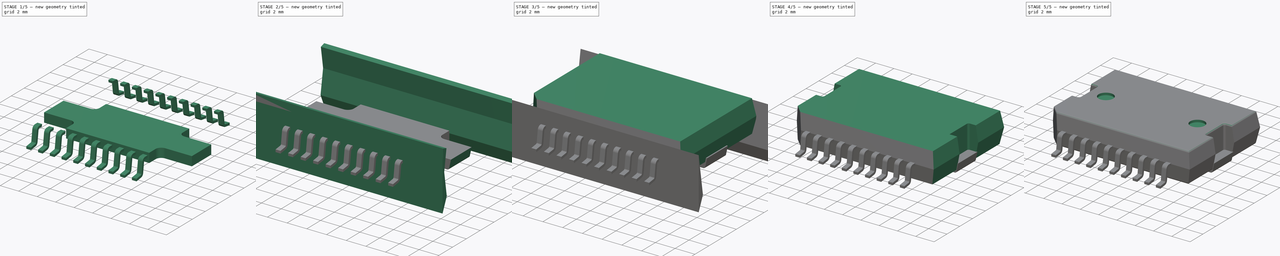
[diagram: build sequence overview — one tinted view per stage of 5, left to right]
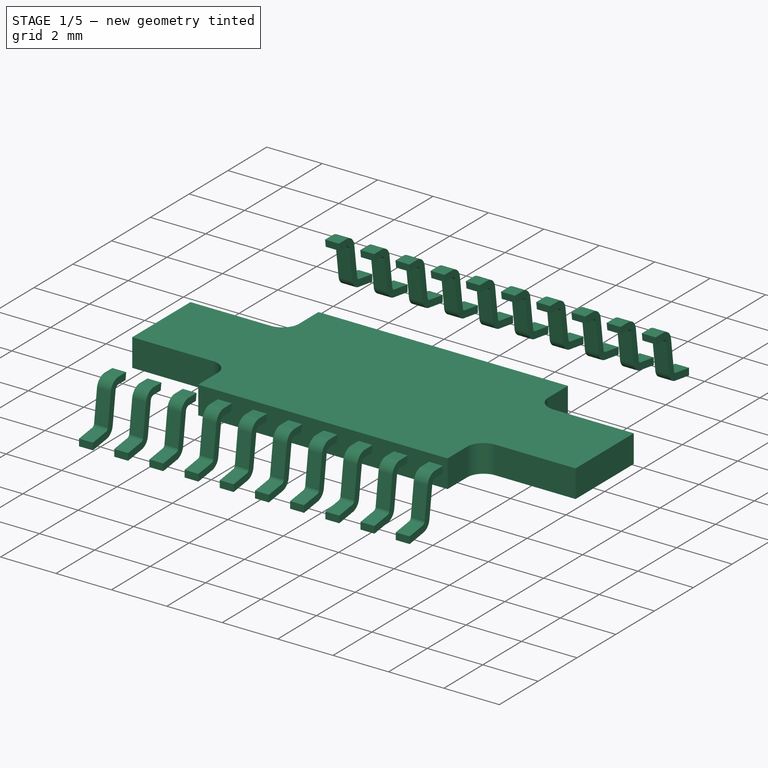
[diagram: stage 1 of 5 — iso view after this stage's code; geometry added in this stage tinted green]
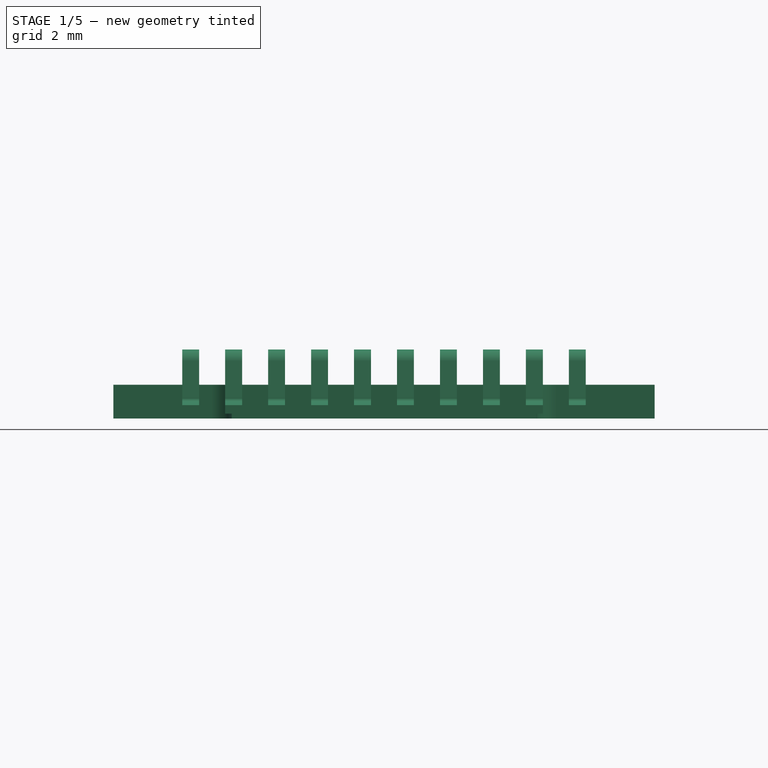
[diagram: stage 1 of 5 — front view after this stage's code; geometry added in this stage tinted green]
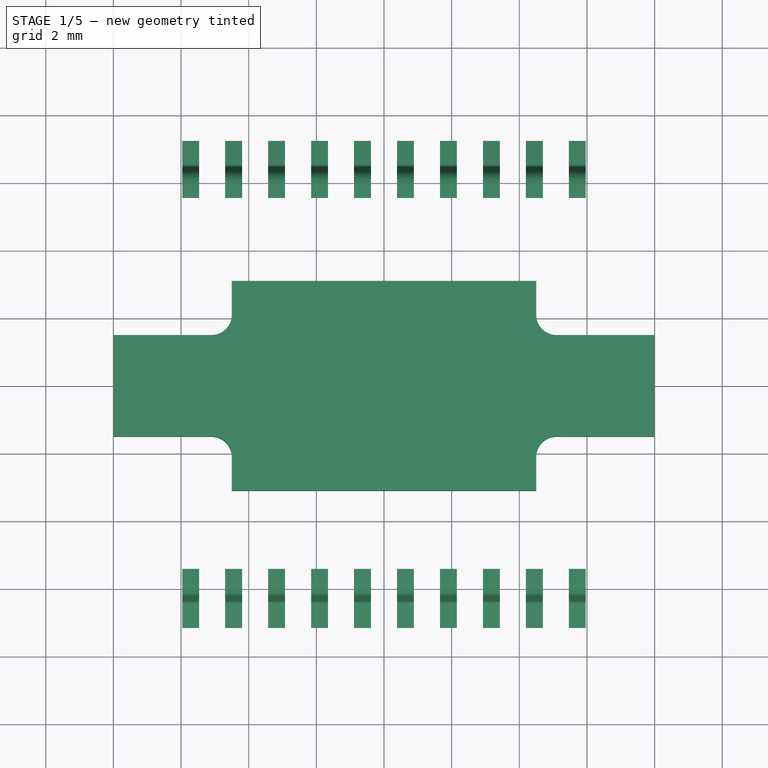
[diagram: stage 1 of 5 — top view after this stage's code; geometry added in this stage tinted green]
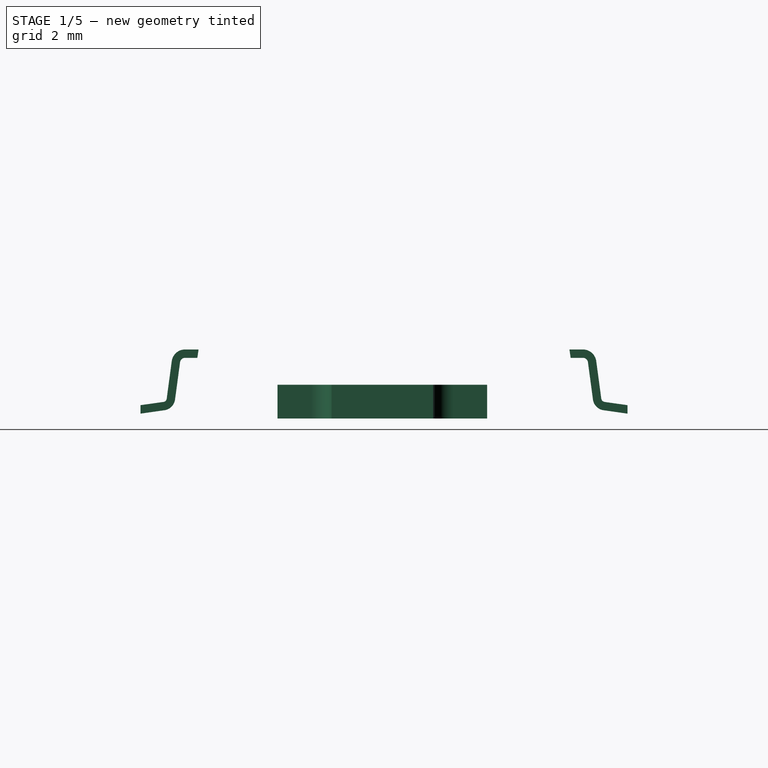
[diagram: stage 1 of 5 — right view after this stage's code; geometry added in this stage tinted green]
FCSTD DOCUMENT  (FreeCAD 0.16R6698 (Git))
Label: l298_Power_SO_20
License: All rights reserved
LicenseURL: http://en.wikipedia.org/wiki/All_rights_reserved
objects: Sketcher::SketchObject×13, PartDesign::Fillet×8, PartDesign::Pocket×5, PartDesign::Pad×4, Part::Cut×2, App::DocumentObjectGroup×2, Part::Sweep×2, Part::FeaturePython×2, PartDesign::Chamfer×1
note: 46 computed .brp shape members not serialized (recipe doc carries the construction recipe); baked Part::Feature solids carry a one-line shape summary decoded from their .brp

FEATURE [Sketcher::SketchObject] Sketch005
  ExternalGeometry = -> [Cut001]
  Placement = pos=(0,5.62034,0.890175) rot=(0,0.649448,0.760406;3.14159rad)
  Support = -> Cut001 [Face10]
  sketch-geometry (8):
    g0: LineSegment StartX=-10.103 StartY=1.45 StartZ=0 EndX=6.39552 EndY=1.45 EndZ=0
    g1: LineSegment StartX=6.39552 StartY=1.45 StartZ=0 EndX=6.39552 EndY=-1.45 EndZ=0
    g2: LineSegment StartX=6.39552 StartY=-1.45 StartZ=0 EndX=-10.103 EndY=-1.45 EndZ=0
    g3: LineSegment StartX=-10.103 StartY=-1.45 StartZ=0 EndX=-10.103 EndY=1.45 EndZ=0
    g4: LineSegment StartX=-6.39552 StartY=1.45 StartZ=0 EndX=10.103 EndY=1.45 EndZ=0
    g5: LineSegment StartX=10.103 StartY=1.45 StartZ=0 EndX=10.103 EndY=-1.45 EndZ=0
    g6: LineSegment StartX=10.103 StartY=-1.45 StartZ=0 EndX=-6.39552 EndY=-1.45 EndZ=0
    g7: LineSegment StartX=-6.39552 StartY=-1.45 StartZ=0 EndX=-6.39552 EndY=1.45 EndZ=0
  constraints (21):
    c: Coincident(g0,g1)
    c: Coincident(g1,g2)
    c: Coincident(g2,g3)
    c: Coincident(g3,g0)
    c: Horizontal(g0)
    c: Horizontal(g2)
    c: Vertical(g1)
    c: Vertical(g3)
    c: Symmetric(g0,g2,g-1)
    c: DistanceY(g3,g3) = 2.9
    c: Distance(g1,g-3) = 1.1
    c: Coincident(g4,g5)
    c: Coincident(g5,g6)
    c: Coincident(g6,g7)
    c: Coincident(g7,g4)
    c: Horizontal(g4)
    c: Horizontal(g6)
    c: Vertical(g5)
    c: Vertical(g7)
    c: Symmetric(g0,g4,g-2)
    c: Symmetric(g6,g1,g-2)
FEATURE [PartDesign::Pocket] Pocket002
  Length = 5
  Sketch = -> Sketch005
  Type = 0
FEATURE [Sketcher::SketchObject] Sketch006
  Placement = pos=(0,0,-0.3) rot=(0,0,1;0rad)
  sketch-geometry (16):
    g0: LineSegment StartX=-4.5 StartY=3.1 StartZ=0 EndX=4.5 EndY=3.1 EndZ=0
    g1: LineSegment StartX=-4.5 StartY=-3.1 StartZ=0 EndX=4.5 EndY=-3.1 EndZ=0
    g2: LineSegment StartX=-5.1 StartY=1.5 StartZ=0 EndX=-8 EndY=1.5 EndZ=0
    g3: LineSegment StartX=-5.1 StartY=-1.5 StartZ=0 EndX=-8 EndY=-1.5 EndZ=0
    g4: LineSegment StartX=8 StartY=1.5 StartZ=0 EndX=5.1 EndY=1.5 EndZ=0
    g5: LineSegment StartX=8 StartY=-1.5 StartZ=0 EndX=5.1 EndY=-1.5 EndZ=0
    g6: LineSegment StartX=-8 StartY=1.5 StartZ=0 EndX=-8 EndY=-1.5 EndZ=0
    g7: LineSegment StartX=8 StartY=1.5 StartZ=0 EndX=8 EndY=-1.5 EndZ=0
    g8: LineSegment StartX=-4.5 StartY=3.1 StartZ=0 EndX=-4.5 EndY=2.1 EndZ=0
    g9: LineSegment StartX=4.5 StartY=3.1 StartZ=0 EndX=4.5 EndY=2.1 EndZ=0
    g10: LineSegment StartX=-4.5 StartY=-3.1 StartZ=0 EndX=-4.5 EndY=-2.1 EndZ=0
    g11: LineSegment StartX=4.5 StartY=-3.1 StartZ=0 EndX=4.5 EndY=-2.1 EndZ=0
    g12: ArcOfCircle CenterX=-5.1 CenterY=2.1 CenterZ=0 NormalX=0 NormalY=0 NormalZ=1 Radius=0.6 StartAngle=4.71239 EndAngle=6.28319
    g13: ArcOfCircle CenterX=-5.1 CenterY=-2.1 CenterZ=0 NormalX=0 NormalY=0 NormalZ=1 Radius=0.6 StartAngle=0 EndAngle=1.5708
    g14: ArcOfCircle CenterX=5.1 CenterY=2.1 CenterZ=0 NormalX=0 NormalY=0 NormalZ=1 Radius=0.6 StartAngle=3.14159 EndAngle=4.71239
    g15: ArcOfCircle CenterX=5.1 CenterY=-2.1 CenterZ=0 NormalX=0 NormalY=0 NormalZ=1 Radius=0.6 StartAngle=1.5708 EndAngle=3.14159
  constraints (40):
    c: Symmetric(g2,g4,g-2)
    c: Equal(g2,g4)
    c: Symmetric(g0,g0,g-2)
    c: Horizontal(g2)
    c: Horizontal(g3)
    c: Horizontal(g4)
    c: Symmetric(g5,g3,g-2)
    c: Equal(g2,g3)
    c: Equal(g3,g5)
    c: Symmetric(g0,g1,g-1)
    c: Symmetric(g0,g1,g-1)
    c: DistanceX(g0,g0) = 9
    c: Horizontal(g5)
    c: DistanceY(g1,g0) = 6.2
    c: DistanceX(g2,g4) = 16
    c: Vertical(g8)
    c: Vertical(g9)
    c: Vertical(g11)
    c: Vertical(g10)
    c: Equal(g11,g10)
    c: Equal(g10,g8)
    c: Equal(g8,g9)
    c: Coincident(g0,g8)
    c: Coincident(g0,g9)
    c: Coincident(g1,g10)
    c: Coincident(g1,g11)
    c: Tangent(g8,g12) = 1.5708
    c: Tangent(g2,g12) = 1.5708
    c: Tangent(g3,g13) = -1.5708
    c: Tangent(g10,g13) = -1.5708
    c: Tangent(g9,g14) = -1.5708
    c: Tangent(g4,g14) = 1.5708
    c: Coincident(g2,g6)
    c: Coincident(g3,g6)
    c: Vertical(g6)
    c: Tangent(g5,g15) = -1.5708
    c: Tangent(g11,g15) = 1.5708
    c: Coincident(g4,g7)
    c: Coincident(g5,g7)
    c: DistanceY(g6,g6) = 3
FEATURE [PartDesign::Pad] Pad003
  Length = 1
  Length2 = 100
  Placement = pos=(0,0,-0.3) rot=(0,0,1;0rad)
  Sketch = -> Sketch006
  Type = 0
FEATURE [App::DocumentObjectGroup] Grupo001  label="disipador"
  Group = -> [Pad003,Pocket004,Fillet007]
FEATURE [Sketcher::SketchObject] Sketch009  label="seccion"
  Placement = pos=(0,0,0) rot=(-1,0,0;4.71239rad)
  sketch-geometry (4):
    g0: LineSegment StartX=0.25 StartY=-0.125 StartZ=0 EndX=-0.25 EndY=-0.125 EndZ=0
    g1: LineSegment StartX=-0.25 StartY=-0.125 StartZ=0 EndX=-0.25 EndY=0.125 EndZ=0
    g2: LineSegment StartX=-0.25 StartY=0.125 StartZ=0 EndX=0.25 EndY=0.125 EndZ=0
    g3: LineSegment StartX=0.25 StartY=0.125 StartZ=0 EndX=0.25 EndY=-0.125 EndZ=0
  constraints (11):
    c: Coincident(g0,g1)
    c: Coincident(g1,g2)
    c: Coincident(g2,g3)
    c: Coincident(g3,g0)
    c: Horizontal(g0)
    c: Horizontal(g2)
    c: Vertical(g1)
    c: Vertical(g3)
    c: Symmetric(g1,g0,g-1)
    c: DistanceX(g2,g2) = 0.5
    c: DistanceY(g1,g1) = 0.25
FEATURE [Sketcher::SketchObject] Sketch010
  Placement = pos=(0,0,0) rot=(0.57735,0.57735,0.57735;2.0944rad)
  sketch-geometry (5):
    g0: LineSegment StartX=0 StartY=0 StartZ=0 EndX=0.69099 EndY=0.0980878 EndZ=0
    g1: LineSegment StartX=0.9 StartY=0.308603 StartZ=0 EndX=1.04814 EndY=1.40893 EndZ=0
    g2: LineSegment StartX=1.32166 StartY=1.64809 StartZ=0 EndX=1.7 EndY=1.64809 EndZ=0
    g3: ArcOfCircle CenterX=0.656453 CenterY=0.341393 CenterZ=0 NormalX=0 NormalY=0 NormalZ=1 Radius=0.245745 StartAngle=4.8534 EndAngle=6.14935
    g4: ArcOfCircle CenterX=1.32166 CenterY=1.3721 CenterZ=0 NormalX=0 NormalY=0 NormalZ=1 Radius=0.275989 StartAngle=1.5708 EndAngle=3.00776
  constraints (9):
    c: Tangent(g0,g3) = -1.5708
    c: Tangent(g1,g3) = -1.5708
    c: Tangent(g1,g4) = 1.5708
    c: Tangent(g2,g4) = 1.5708
    c: Coincident(g0,g-1)
    c: Horizontal(g2)
    c: DistanceX(g2) = 1.7
    c: DistanceY(g0,g2) = 1.55
    c: DistanceX(g1) = 0.9
FEATURE [Part::Sweep] Sweep
  Frenet = false
  Sections = -> [Sketch009]
  Solid = true
  Spine = -> Sketch010 [Edge1,Edge2,Edge3,Edge4,Edge5]
  Transition = 1
FEATURE [Part::FeaturePython] Array  # Draft array (typed FeaturePython)
  Angle = 360
  ArrayType = 0
  Axis = (0,0,1)
  Base = -> Sweep
  Center = (0,0,0)
  Fuse = false
  IntervalAxis = (0,0,0)
  IntervalX = (1.27,0,0)
  IntervalY = (0,14.5,0)
  IntervalZ = (0,0,0)
  NumberPolar = 1
  NumberX = 10
  NumberY = 1
  NumberZ = 1
  Placement = pos=(-5.715,-7.15,-0.03) rot=(0,0,1;0rad)
FEATURE [Sketcher::SketchObject] Sketch011  label="seccion001"
  Placement = pos=(0,0,0) rot=(1,0,0;1.5708rad)
  sketch-geometry (4):
    g0: LineSegment StartX=0.25 StartY=-0.125 StartZ=0 EndX=-0.25 EndY=-0.125 EndZ=0
    g1: LineSegment StartX=-0.25 StartY=-0.125 StartZ=0 EndX=-0.25 EndY=0.125 EndZ=0
    g2: LineSegment StartX=-0.25 StartY=0.125 StartZ=0 EndX=0.25 EndY=0.125 EndZ=0
    g3: LineSegment StartX=0.25 StartY=0.125 StartZ=0 EndX=0.25 EndY=-0.125 EndZ=0
  constraints (11):
    c: Coincident(g0,g1)
    c: Coincident(g1,g2)
    c: Coincident(g2,g3)
    c: Coincident(g3,g0)
    c: Horizontal(g0)
    c: Horizontal(g2)
    c: Vertical(g1)
    c: Vertical(g3)
    c: Symmetric(g1,g0,g-1)
    c: DistanceX(g2,g2) = 0.5
    c: DistanceY(g1,g1) = 0.25
FEATURE [Sketcher::SketchObject] Sketch012
  Placement = pos=(0,0,0) rot=(0.57735,0.57735,0.57735;2.0944rad)
  sketch-geometry (5):
    g0: LineSegment StartX=0 StartY=0 StartZ=0 EndX=0.69099 EndY=0.0980878 EndZ=0
    g1: LineSegment StartX=0.9 StartY=0.308603 StartZ=0 EndX=1.04814 EndY=1.40893 EndZ=0
    g2: LineSegment StartX=1.32166 StartY=1.64809 StartZ=0 EndX=1.7 EndY=1.64809 EndZ=0
    g3: ArcOfCircle CenterX=0.656453 CenterY=0.341393 CenterZ=0 NormalX=0 NormalY=0 NormalZ=1 Radius=0.245745 StartAngle=4.8534 EndAngle=6.14935
    g4: ArcOfCircle CenterX=1.32166 CenterY=1.3721 CenterZ=0 NormalX=0 NormalY=0 NormalZ=1 Radius=0.275989 StartAngle=1.5708 EndAngle=3.00776
  constraints (9):
    c: Tangent(g0,g3) = -1.5708
    c: Tangent(g1,g3) = -1.5708
    c: Tangent(g1,g4) = 1.5708
    c: Tangent(g2,g4) = 1.5708
    c: Coincident(g0,g-1)
    c: Horizontal(g2)
    c: DistanceX(g2) = 1.7
    c: DistanceY(g0,g2) = 1.55
    c: DistanceX(g1) = 0.9
FEATURE [Part::Sweep] Sweep001
  Frenet = false
  Placement = pos=(0,0,0) rot=(0,0,1;3.14159rad)
  Sections = -> [Sketch011]
  Solid = true
  Spine = -> Sketch012 [Edge1,Edge2,Edge3,Edge4,Edge5]
  Transition = 1
FEATURE [Part::FeaturePython] Array001  # Draft array (typed FeaturePython)
  Angle = 360
  ArrayType = 0
  Axis = (0,0,1)
  Base = -> Sweep001
  Center = (0,0,0)
  Fuse = false
  IntervalAxis = (0,0,0)
  IntervalX = (1.27,0,0)
  IntervalY = (0,1,0)
  IntervalZ = (0,0,0)
  NumberPolar = 1
  NumberX = 10
  NumberY = 1
  NumberZ = 1
  Placement = pos=(-5.715,7.25,-0.03) rot=(0,0,1;0rad)
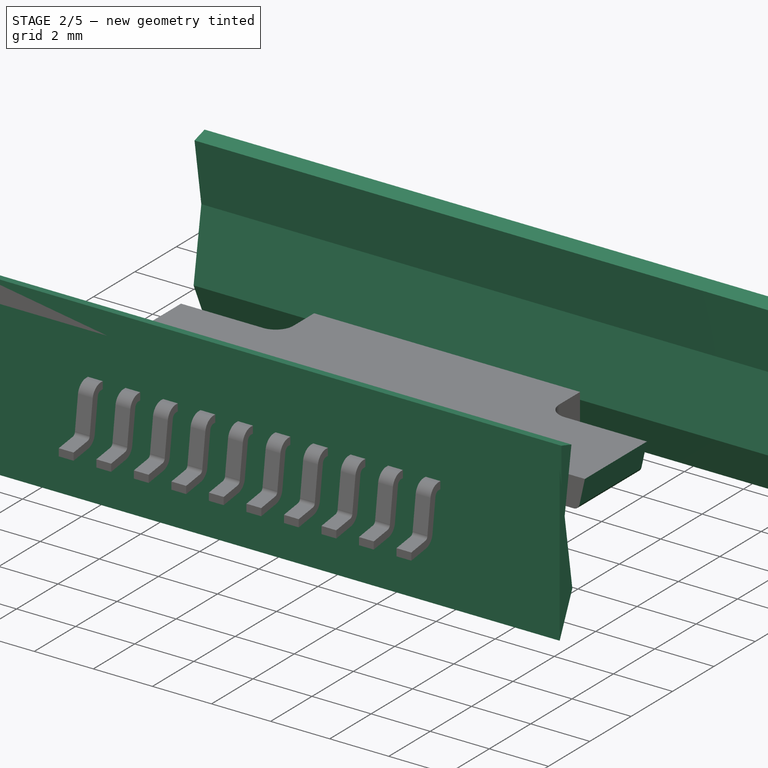
[diagram: stage 2 of 5 — iso view after this stage's code; geometry added in this stage tinted green]
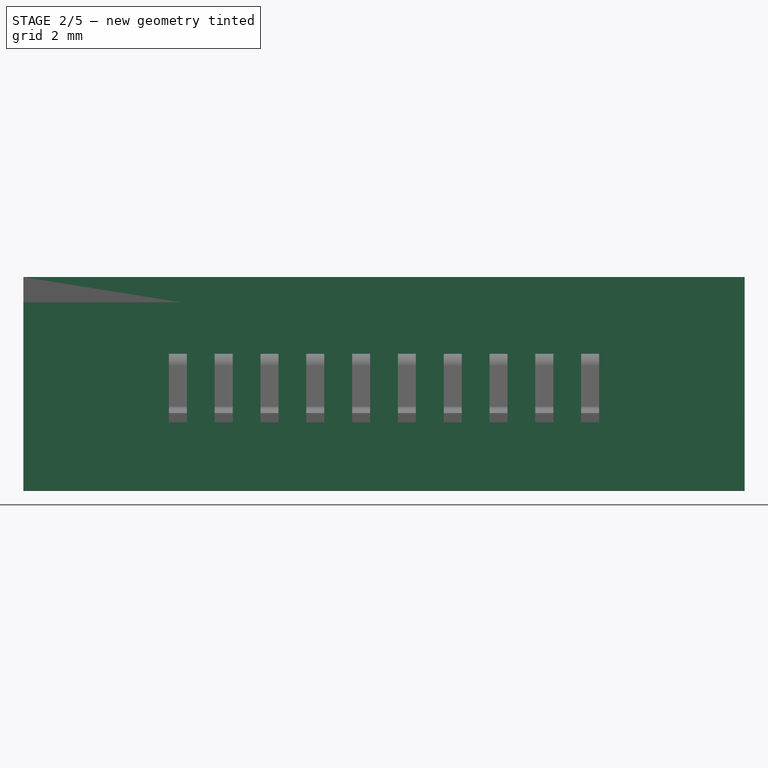
[diagram: stage 2 of 5 — front view after this stage's code; geometry added in this stage tinted green]
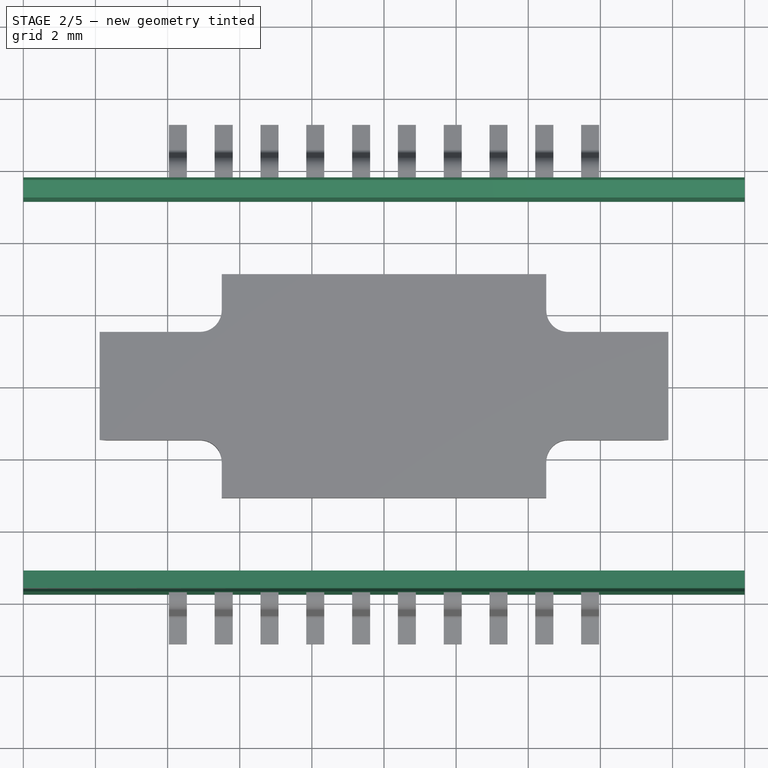
[diagram: stage 2 of 5 — top view after this stage's code; geometry added in this stage tinted green]
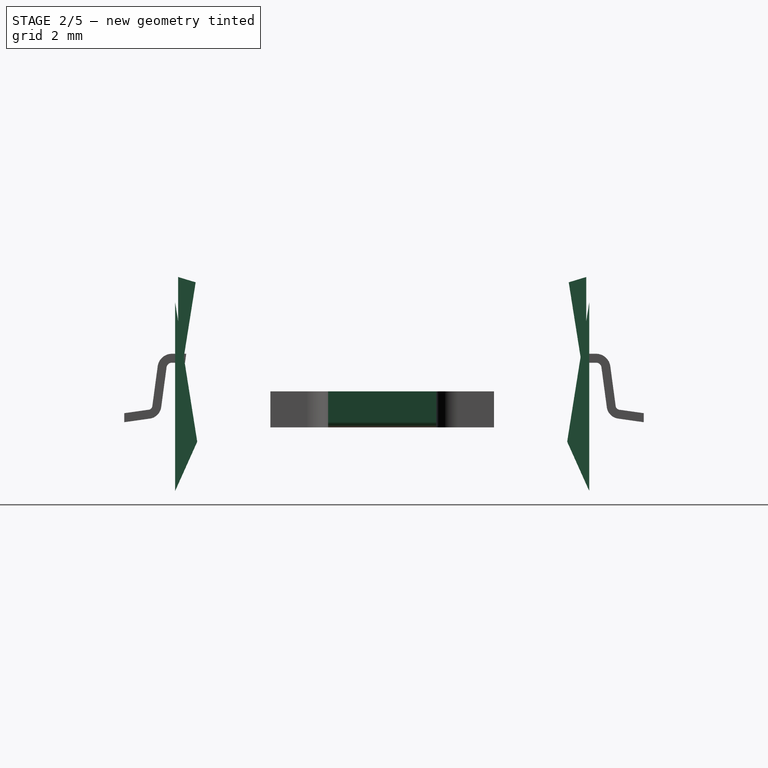
[diagram: stage 2 of 5 — right view after this stage's code; geometry added in this stage tinted green]
FEATURE [Sketcher::SketchObject] Sketch003
  Placement = pos=(0,0,0) rot=(0.57735,0.57735,0.57735;2.0944rad)
  sketch-geometry (6):
    g0: LineSegment StartX=-5.65844 StartY=3.87084 StartZ=0 EndX=-5.17156 EndY=3.72367 EndZ=0
    g1: LineSegment StartX=-5.17156 StartY=3.72367 StartZ=0 EndX=-5.65844 EndY=0.649667 EndZ=0
    g2: LineSegment StartX=-5.65844 StartY=0.649667 StartZ=0 EndX=-5.65844 EndY=3.87084 EndZ=0
    g3: LineSegment StartX=5.17156 StartY=3.72367 StartZ=0 EndX=5.65844 EndY=3.87084 EndZ=0
    g4: LineSegment StartX=5.65844 StartY=3.87084 StartZ=0 EndX=5.65844 EndY=0.649667 EndZ=0
    g5: LineSegment StartX=5.65844 StartY=0.649667 StartZ=0 EndX=5.17156 EndY=3.72367 EndZ=0
  constraints (11):
    c: Coincident(g0,g1)
    c: Coincident(g1,g2)
    c: Coincident(g2,g0)
    c: Angle(g1,g2) = 0.15708
    c: Vertical(g2)
    c: Coincident(g3,g4)
    c: Coincident(g4,g5)
    c: Coincident(g5,g3)
    c: Symmetric(g0,g3,g-2)
    c: Symmetric(g0,g3,g-2)
    c: Symmetric(g1,g4,g-2)
FEATURE [PartDesign::Pad] Pad001
  Length = 20
  Length2 = 100
  Midplane = true
  Placement = pos=(0,0,0) rot=(0.57735,0.57735,0.57735;2.0944rad)
  Sketch = -> Sketch003
  Type = 0
FEATURE [Sketcher::SketchObject] Sketch004
  Placement = pos=(0,0,0) rot=(0.57735,0.57735,0.57735;2.0944rad)
  sketch-geometry (6):
    g0: LineSegment StartX=-5.74098 StartY=3.17177 StartZ=0 EndX=-5.74098 EndY=-2.06259 EndZ=0
    g1: LineSegment StartX=-5.74098 StartY=-2.06259 StartZ=0 EndX=-5.12843 EndY=-0.695691 EndZ=0
    g2: LineSegment StartX=-5.12843 StartY=-0.695691 StartZ=0 EndX=-5.74098 EndY=3.17177 EndZ=0
    g3: LineSegment StartX=5.74098 StartY=3.17177 StartZ=0 EndX=5.74098 EndY=-2.06259 EndZ=0
    g4: LineSegment StartX=5.74098 StartY=-2.06259 StartZ=0 EndX=5.12843 EndY=-0.695691 EndZ=0
    g5: LineSegment StartX=5.12843 StartY=-0.695691 StartZ=0 EndX=5.74098 EndY=3.17177 EndZ=0
  constraints (11):
    c: Coincident(g0,g1)
    c: Coincident(g1,g2)
    c: Coincident(g0,g2)
    c: Vertical(g0)
    c: Angle(g0,g2) = 0.15708
    c: Coincident(g3,g4)
    c: Coincident(g4,g5)
    c: Coincident(g5,g3)
    c: Symmetric(g0,g3,g-2)
    c: Symmetric(g1,g4,g-2)
    c: Symmetric(g0,g3,g-2)
FEATURE [PartDesign::Pad] Pad002
  Length = 20
  Length2 = 100
  Midplane = true
  Placement = pos=(0,0,0) rot=(0.57735,0.57735,0.57735;2.0944rad)
  Sketch = -> Sketch004
  Type = 0
FEATURE [App::DocumentObjectGroup] Grupo  label="paquete001"
  Group = -> [Pad,Chamfer,Pocket,Cut001,Pocket002,Fillet,Fillet001,Fillet002,Fillet003,Fillet004,Fillet005,Fillet006,Pocket003]
FEATURE [PartDesign::Pocket] Pocket004
  Length = 20
  Midplane = true
  Placement = pos=(0,0,-0.3) rot=(0,0,1;0rad)
  Sketch = -> Sketch008
  Type = 0
FEATURE [PartDesign::Fillet] Fillet007
  Base = -> Pocket004 [Edge11,Edge19]
  Placement = pos=(0,0,-0.3) rot=(0,0,1;0rad)
  Radius = 0.2
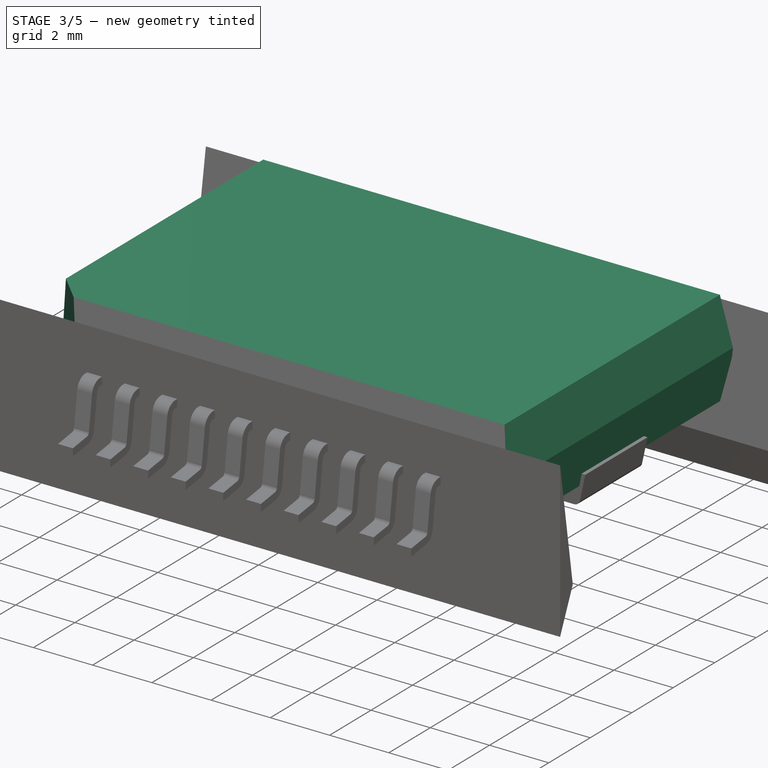
[diagram: stage 3 of 5 — iso view after this stage's code; geometry added in this stage tinted green]
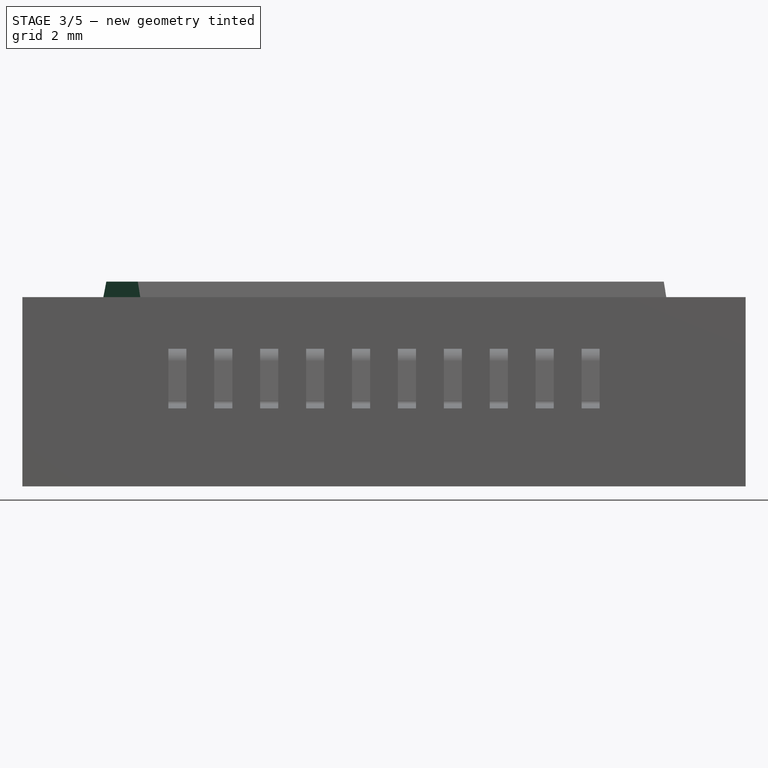
[diagram: stage 3 of 5 — front view after this stage's code; geometry added in this stage tinted green]
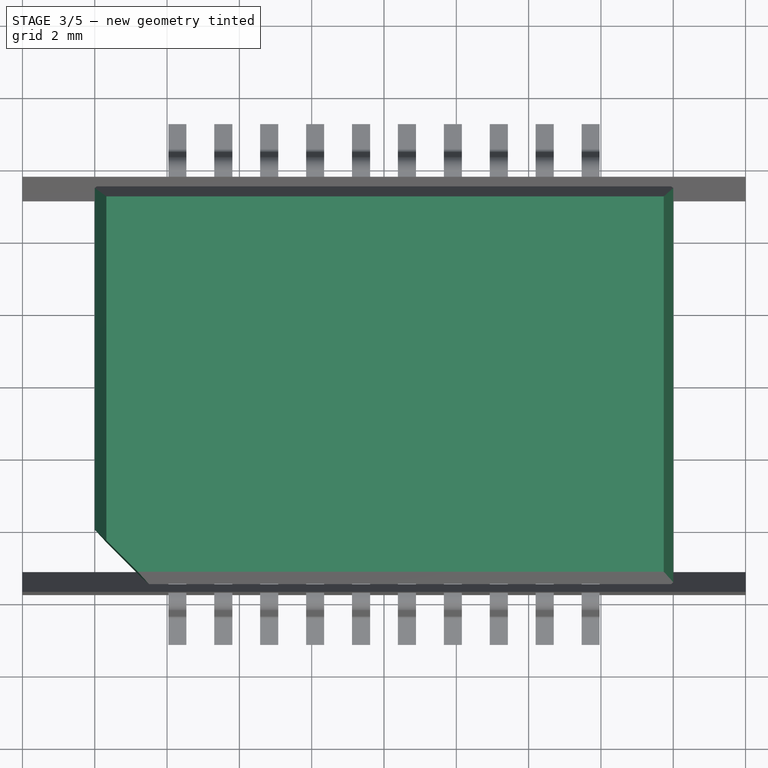
[diagram: stage 3 of 5 — top view after this stage's code; geometry added in this stage tinted green]
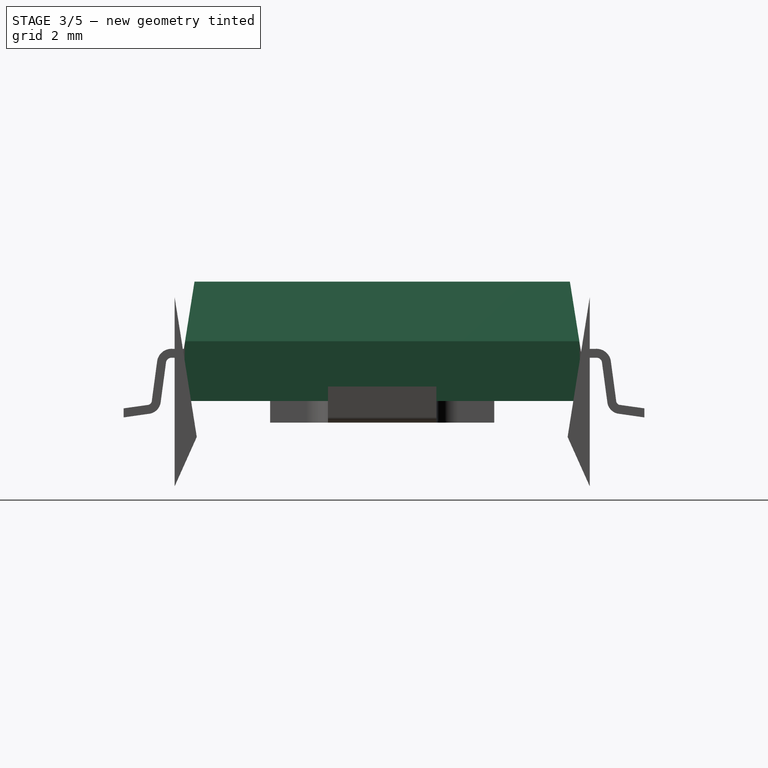
[diagram: stage 3 of 5 — right view after this stage's code; geometry added in this stage tinted green]
FEATURE [Sketcher::SketchObject] Sketch
  Placement = pos=(0,0,0.3) rot=(0,0,1;0rad)
  sketch-geometry (4):
    g0: LineSegment StartX=-8 StartY=5.5 StartZ=0 EndX=8 EndY=5.5 EndZ=0
    g1: LineSegment StartX=8 StartY=5.5 StartZ=0 EndX=8 EndY=-5.5 EndZ=0
    g2: LineSegment StartX=8 StartY=-5.5 StartZ=0 EndX=-8 EndY=-5.5 EndZ=0
    g3: LineSegment StartX=-8 StartY=-5.5 StartZ=0 EndX=-8 EndY=5.5 EndZ=0
  constraints (11):
    c: Coincident(g0,g1)
    c: Coincident(g1,g2)
    c: Coincident(g2,g3)
    c: Coincident(g3,g0)
    c: Horizontal(g0)
    c: Horizontal(g2)
    c: Vertical(g1)
    c: Vertical(g3)
    c: Symmetric(g0,g1,g-1)
    c: DistanceX(g0,g0) = 16
    c: DistanceY(g3,g3) = 11
FEATURE [PartDesign::Pad] Pad
  Length = 3.3
  Length2 = 100
  Placement = pos=(0,0,0.3) rot=(0,0,1;0rad)
  Sketch = -> Sketch
  Type = 0
FEATURE [PartDesign::Chamfer] Chamfer
  Base = -> Pad [Edge8]
  Placement = pos=(0,0,0.3) rot=(0,0,1;0rad)
  Size = 1.5
FEATURE [Sketcher::SketchObject] Sketch001
  ExternalGeometry = -> [Chamfer]
  Placement = pos=(0,-5.5,0.3) rot=(1,0,0;1.5708rad)
  Support = -> Chamfer [Face1]
  sketch-geometry (12):
    g0: LineSegment StartX=-8 StartY=1.65 StartZ=0 EndX=-7.67927 EndY=3.3 EndZ=0
    g1: LineSegment StartX=-7.67927 StartY=3.3 StartZ=0 EndX=-8 EndY=3.3 EndZ=0
    g2: LineSegment StartX=-8 StartY=3.3 StartZ=0 EndX=-8 EndY=1.65 EndZ=0
    g3: LineSegment StartX=7.67927 StartY=3.3 StartZ=0 EndX=7.67927 EndY=3.3 EndZ=0
    g4: LineSegment StartX=7.67927 StartY=3.3 StartZ=0 EndX=8 EndY=1.65 EndZ=0
    g5: LineSegment StartX=8 StartY=1.65 StartZ=0 EndX=7.67927 EndY=3.3 EndZ=0
    g6: LineSegment StartX=-8 StartY=1.65 StartZ=0 EndX=-8 EndY=0 EndZ=0
    g7: LineSegment StartX=-8 StartY=0 StartZ=0 EndX=-7.67927 EndY=0 EndZ=0
    g8: LineSegment StartX=-7.67927 StartY=0 StartZ=0 EndX=-8 EndY=1.65 EndZ=0
    g9: LineSegment StartX=8 StartY=1.65 StartZ=0 EndX=7.67927 EndY=0 EndZ=0
    g10: LineSegment StartX=7.67927 StartY=0 StartZ=0 EndX=8 EndY=0 EndZ=0
    g11: LineSegment StartX=8 StartY=0 StartZ=0 EndX=8 EndY=1.65 EndZ=0
  constraints (29):
    c: Coincident(g1,g2)
    c: Coincident(g0,g2)
    c: Vertical(g2)
    c: Angle(g0) = 1.37881
    c: Coincident(g0,g1)
    c: Horizontal(g1)
    c: PointOnObject(g0,g-3)
    c: DistanceY(g2,g2) = 1.65
    c: Coincident(g3,g4)
    c: Coincident(g4,g5)
    c: Coincident(g5,g3)
    c: Symmetric(g0,g3,g-2)
    c: PointOnObject(g1,g-4)
    c: Symmetric(g3,g0,g-2)
    c: Symmetric(g0,g4,g-2)
    c: Coincident(g6,g7)
    c: Coincident(g7,g8)
    c: Coincident(g8,g6)
    c: Coincident(g6,g0)
    c: Coincident(g6,g-4)
    c: Horizontal(g7)
    c: Equal(g1,g7)
    c: Coincident(g9,g10)
    c: Coincident(g10,g11)
    c: Coincident(g11,g9)
    c: Coincident(g4,g9)
    c: Horizontal(g10)
    c: Symmetric(g7,g9,g-2)
    c: Symmetric(g6,g10,g-2)
FEATURE [PartDesign::Pocket] Pocket
  Length = 40
  Midplane = true
  Placement = pos=(0,0,0.3) rot=(0,0,1;0rad)
  Sketch = -> Sketch001
  Type = 0
FEATURE [Sketcher::SketchObject] Sketch002
  ExternalGeometry = -> [Pocket]
  Placement = pos=(0,-5.5,0.3) rot=(1,0,0;1.5708rad)
  Support = -> Pocket [Face1]
  sketch-geometry (3):
    g0: LineSegment StartX=8.0958 StartY=3.37626 StartZ=0 EndX=8.0958 EndY=1.04515 EndZ=0
    g1: LineSegment StartX=8.0958 StartY=1.04515 StartZ=0 EndX=7.70681 EndY=3.50112 EndZ=0
    g2: LineSegment StartX=7.70681 StartY=3.50112 StartZ=0 EndX=8.0958 EndY=3.37626 EndZ=0
  constraints (6):
    c: Coincident(g0,g1)
    c: Coincident(g1,g2)
    c: Coincident(g2,g0)
    c: PointOnObject(g-3,g1)
    c: Angle(g0,g1) = 0.15708
    c: Vertical(g0)
FEATURE [PartDesign::Pocket] Pocket001
  Length = 40
  Midplane = true
  Placement = pos=(0,0,0.3) rot=(0,0,1;0rad)
  Sketch = -> Sketch002
  Type = 0
FEATURE [Part::Cut] Cut
  Base = -> Pocket001
  Tool = -> Pad001
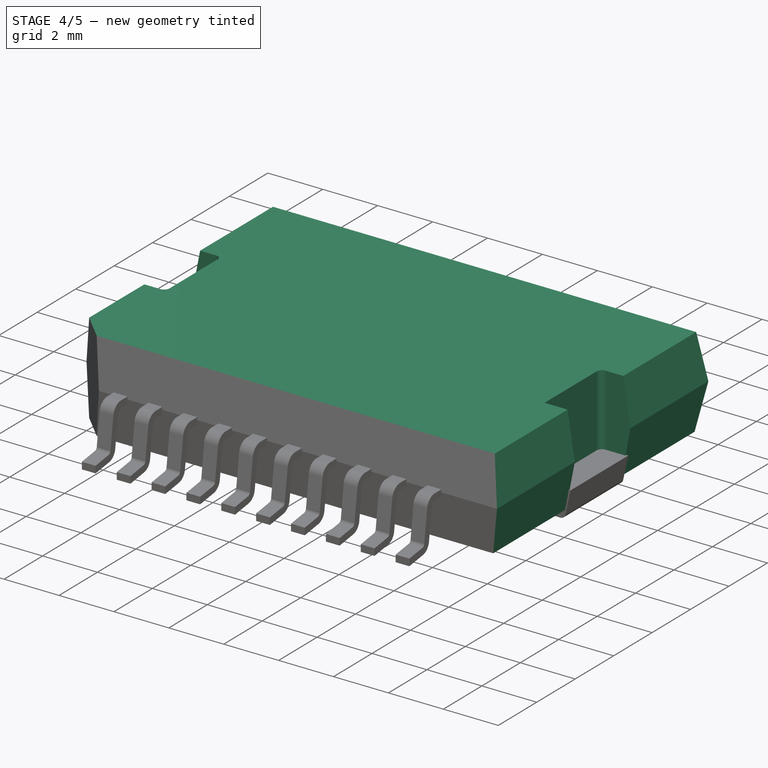
[diagram: stage 4 of 5 — iso view after this stage's code; geometry added in this stage tinted green]
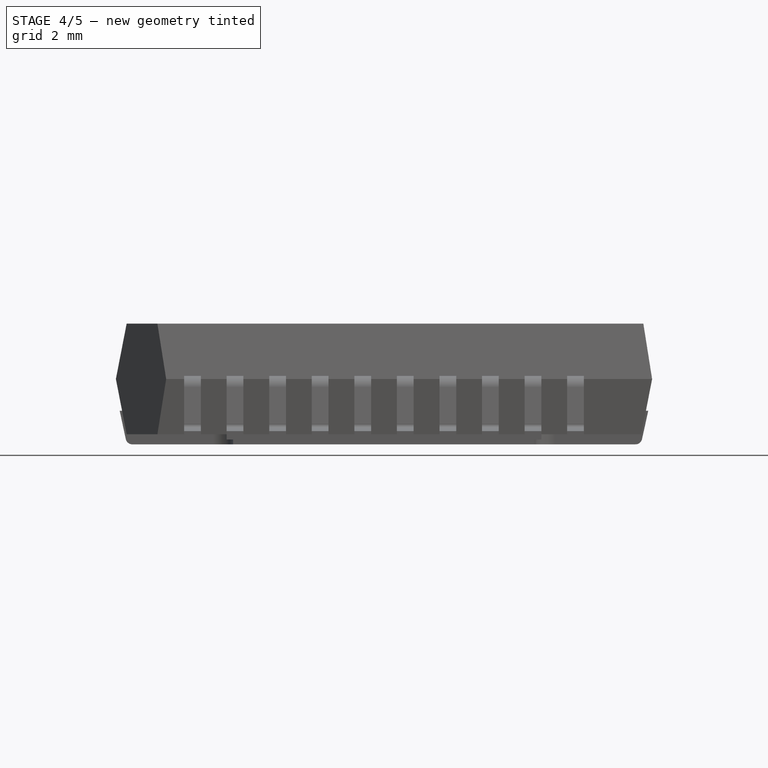
[diagram: stage 4 of 5 — front view after this stage's code; geometry added in this stage tinted green]
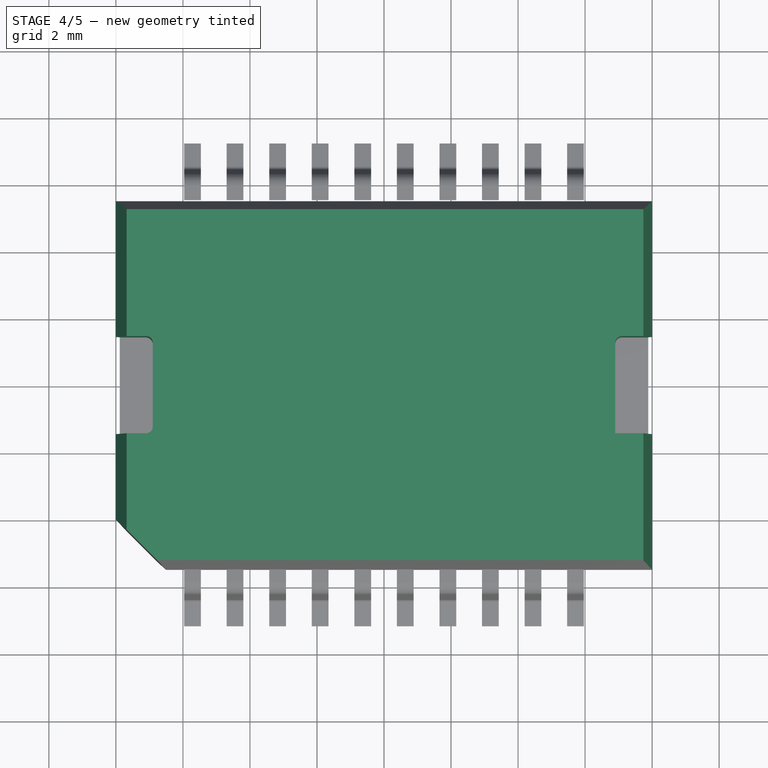
[diagram: stage 4 of 5 — top view after this stage's code; geometry added in this stage tinted green]
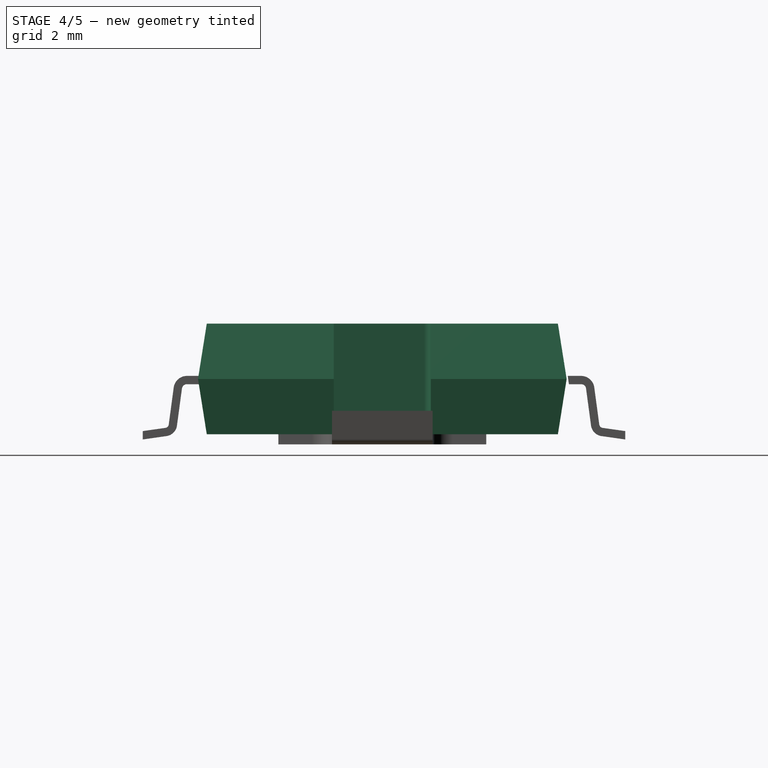
[diagram: stage 4 of 5 — right view after this stage's code; geometry added in this stage tinted green]
FEATURE [Part::Cut] Cut001
  Base = -> Cut
  Tool = -> Pad002
FEATURE [Sketcher::SketchObject] Sketch008
  Placement = pos=(0,3.1,-0.3) rot=(0,0.707107,0.707107;3.14159rad)
  Support = -> Pad003 [Face3]
  sketch-geometry (6):
    g0: LineSegment StartX=-8.13618 StartY=2.15031 StartZ=0 EndX=-8.13618 EndY=-0.726569 EndZ=0
    g1: LineSegment StartX=-8.13618 StartY=-0.726569 StartZ=0 EndX=-7.61962 EndY=-0.207367 EndZ=0
    g2: LineSegment StartX=-7.61962 StartY=-0.207367 StartZ=0 EndX=-8.13618 EndY=2.15031 EndZ=0
    g3: LineSegment StartX=8.15015 StartY=2.23936 StartZ=0 EndX=7.55319 EndY=-0.558051 EndZ=0
    g4: LineSegment StartX=7.55319 StartY=-0.558051 StartZ=0 EndX=8.46946 EndY=-0.502519 EndZ=0
    g5: LineSegment StartX=8.46946 StartY=-0.502519 StartZ=0 EndX=8.15015 EndY=2.23936 EndZ=0
  constraints (7):
    c: Coincident(g0,g1)
    c: Coincident(g1,g2)
    c: Coincident(g0,g2)
    c: Vertical(g0)
    c: Coincident(g3,g4)
    c: Coincident(g4,g5)
    c: Coincident(g5,g3)
FEATURE [PartDesign::Fillet] Fillet
  Base = -> Pocket002 [Edge25]
  Radius = 0.2
FEATURE [PartDesign::Fillet] Fillet001
  Base = -> Fillet [Edge17]
  Radius = 0.2
FEATURE [PartDesign::Fillet] Fillet002
  Base = -> Fillet001 [Edge50]
  Radius = 0.2
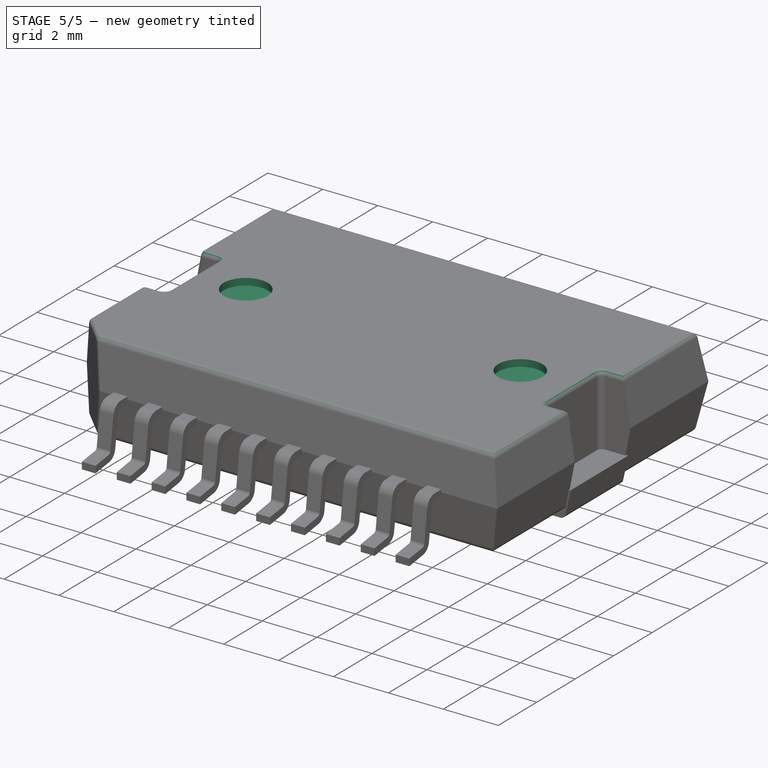
[diagram: stage 5 of 5 — iso view after this stage's code; geometry added in this stage tinted green]
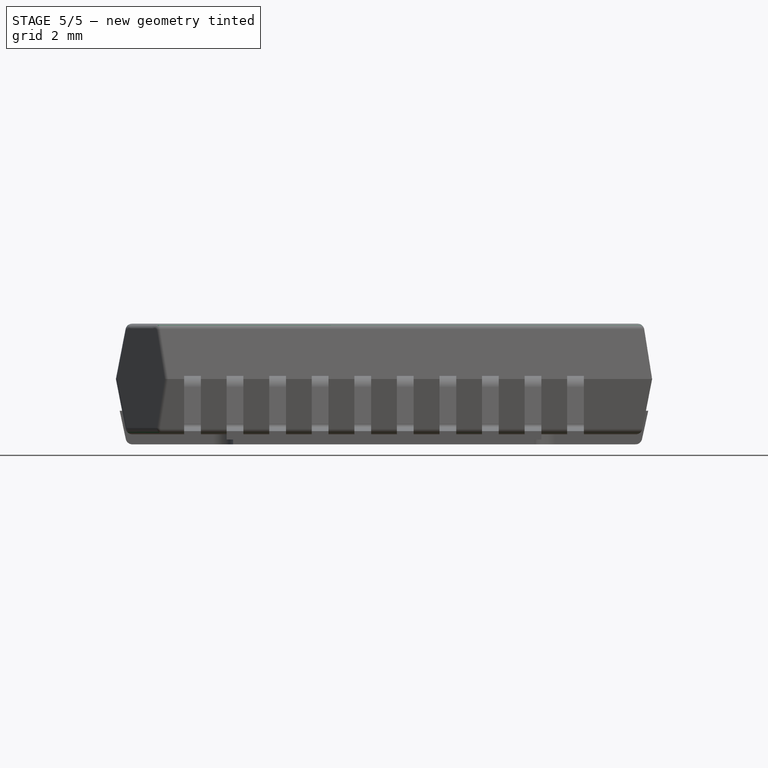
[diagram: stage 5 of 5 — front view after this stage's code; geometry added in this stage tinted green]
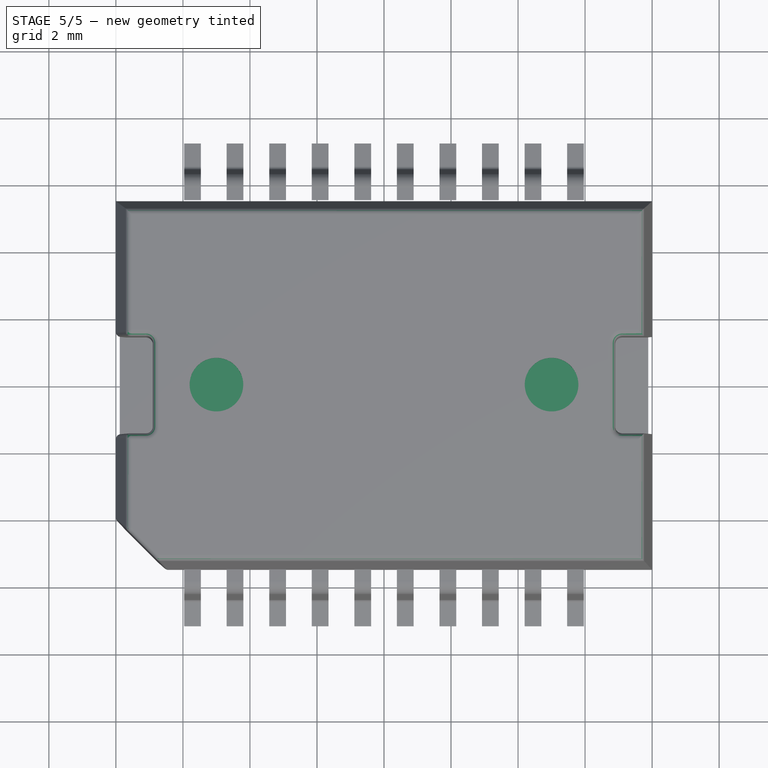
[diagram: stage 5 of 5 — top view after this stage's code; geometry added in this stage tinted green]
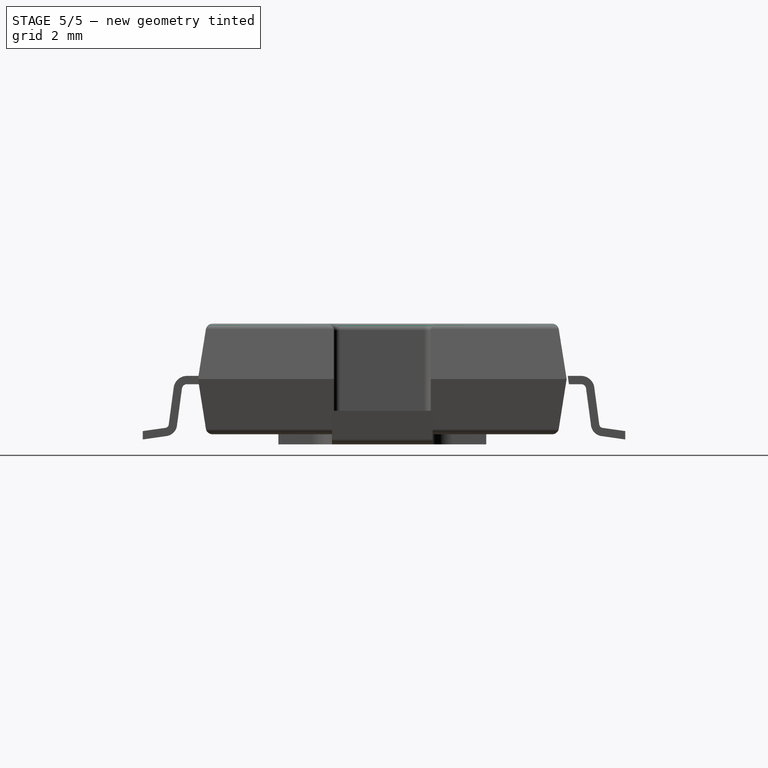
[diagram: stage 5 of 5 — right view after this stage's code; geometry added in this stage tinted green]
FEATURE [PartDesign::Fillet] Fillet003  label="paquete"
  Base = -> Fillet002 [Edge26]
  Radius = 0.2
FEATURE [PartDesign::Fillet] Fillet004
  Base = -> Fillet003 [Edge65,Edge50,Edge56,Edge60,Edge66,Edge64,Edge62,Edge18,Edge28,Edge25,Edge61,Edge63]
  Radius = 0.2
FEATURE [PartDesign::Fillet] Fillet005
  Base = -> Fillet004 [Edge17,Edge15,Edge3,Edge13,Edge19,Edge21,Edge25,Edge22,Edge20,Edge18,Edge16,Edge14,Edge12]
  Radius = 0.2
FEATURE [PartDesign::Fillet] Fillet006
  Base = -> Fillet005 [Edge103,Edge106,Edge102,Edge104,Edge143,Edge137,Edge149,Edge148]
  Radius = 0.15
FEATURE [Sketcher::SketchObject] Sketch007
  Placement = pos=(0,0,3.3) rot=(0,0,1;0rad)
  Support = -> Fillet006 [Face1]
  sketch-geometry (2):
    g0: Circle CenterX=-5 CenterY=0 CenterZ=0 NormalX=0 NormalY=0 NormalZ=1 Radius=0.8
    g1: Circle CenterX=5 CenterY=0 CenterZ=0 NormalX=0 NormalY=0 NormalZ=1 Radius=0.8
  constraints (5):
    c: PointOnObject(g0,g-1)
    c: Symmetric(g0,g1,g-2)
    c: DistanceX(g0,g1) = 10
    c: Radius(g0) = 0.8
    c: Radius(g1) = 0.8
FEATURE [PartDesign::Pocket] Pocket003
  Length = 0.25
  Sketch = -> Sketch007
  Type = 0
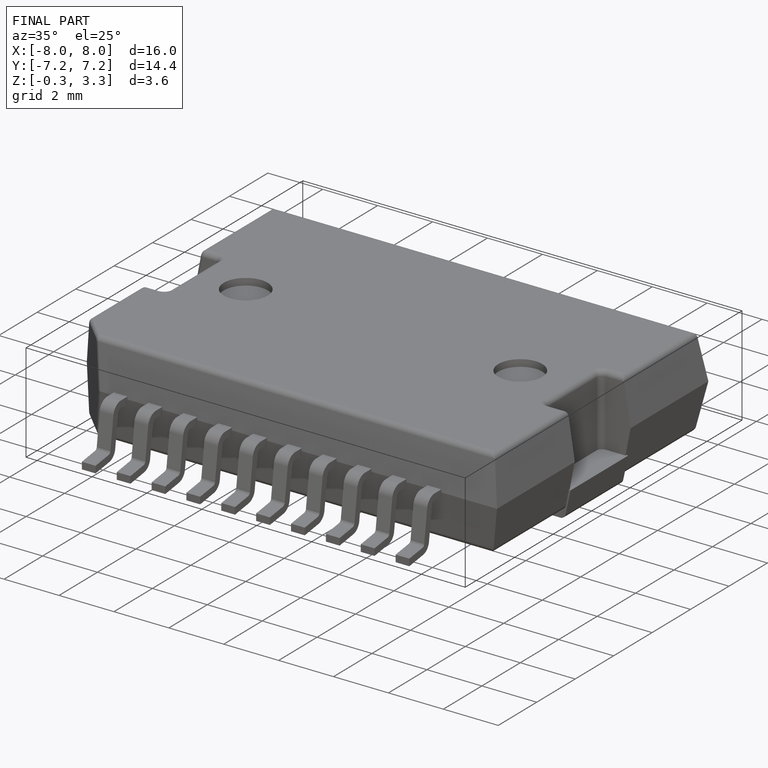
[diagram: finished part — iso view with bounding-box wireframe]
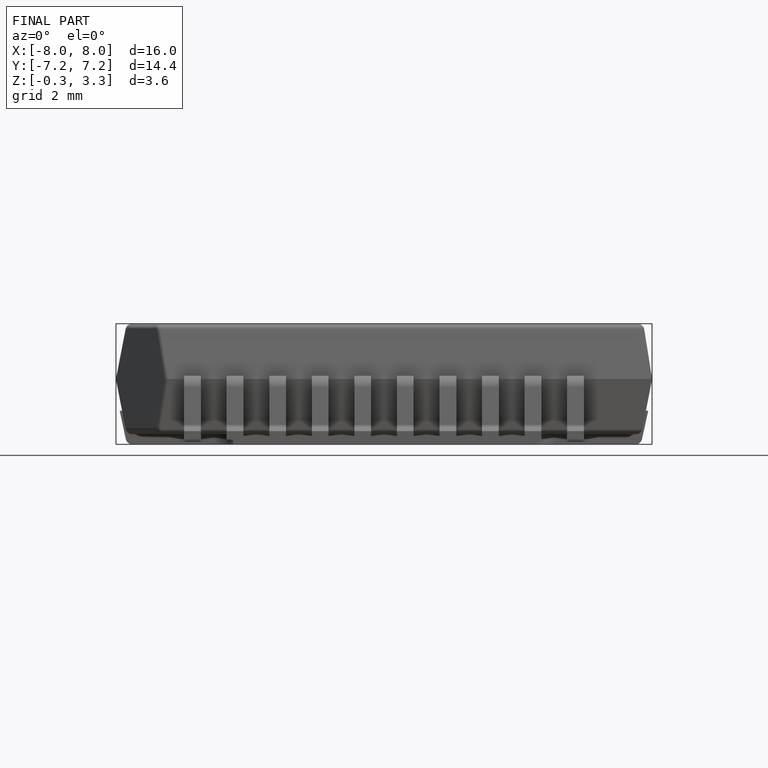
[diagram: finished part — front view with bounding-box wireframe]
